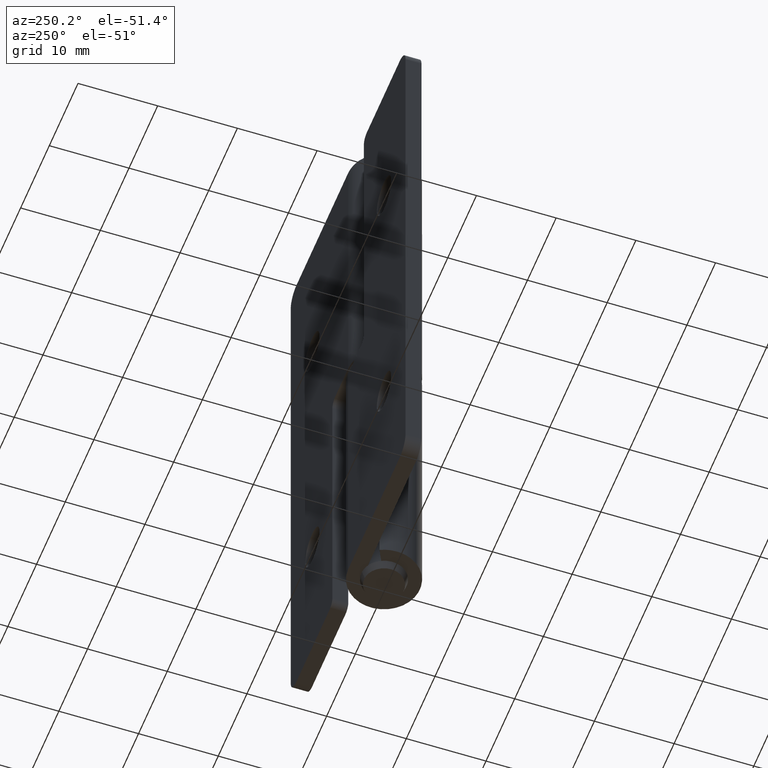
[diagram: clean part render]
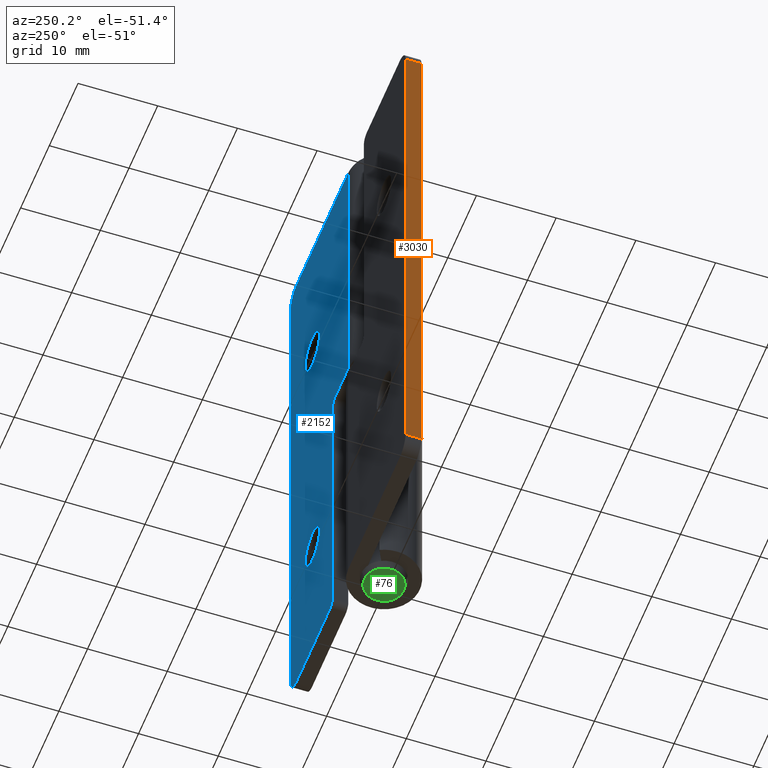
[diagram: same view with three faces highlighted in distinct colors, each labeled with its STEP entity id]
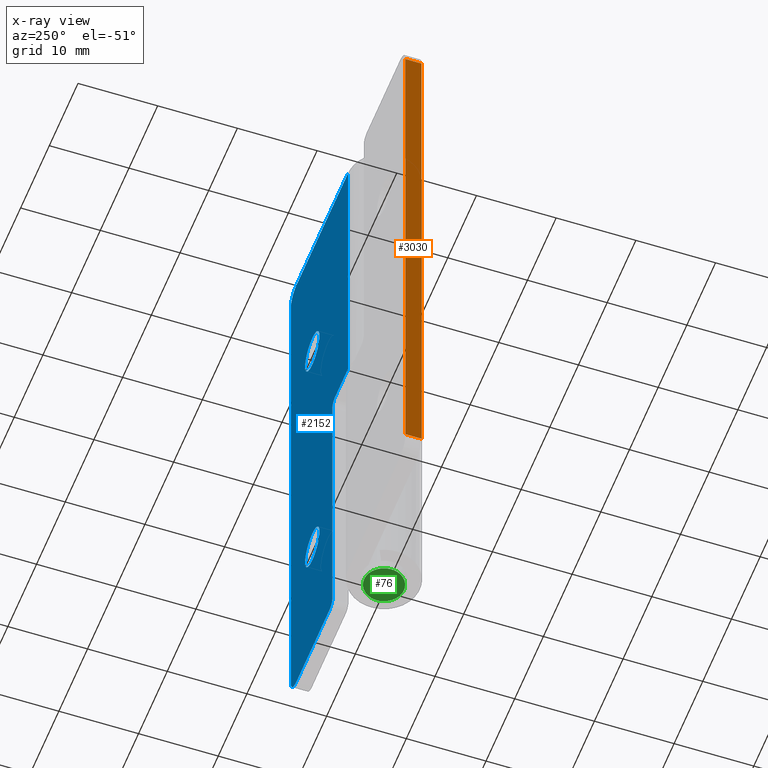
[diagram: x-ray of the same camera — body ghosted, the three highlighted faces saturated]
A machine part, auxiliary view with three faces highlighted in distinct colors.
The next image is the same camera in x-ray (body ghosted, the three faces saturated) — at least one of them is partly hidden behind the body in this view.
Their STEP definitions:

[orange] entity #3030 — the highlighted face is a freeform B-spline surface patch.
#2591=CARTESIAN_POINT('',(-19.999999999987448,4.499999999993520,2.0));
#2592=VERTEX_POINT('',#2591);
#2606=CARTESIAN_POINT('',(-19.999999999987448,4.499999999993520,73.0));
#2607=VERTEX_POINT('',#2606);
#2608=CARTESIAN_POINT('',(-19.999999999987448,4.499999999993520,73.0));
#2609=CARTESIAN_POINT('',(-19.999999999987448,4.499999999993520,2.0));
#2610=QUASI_UNIFORM_CURVE('',1,(#2608,#2609),.UNSPECIFIED.,.F.,.U.);
#2611=EDGE_CURVE('',#2607,#2592,#2610,.T.);
#2746=CARTESIAN_POINT('',(-19.999999999981050,2.499999999935400,73.0));
#2747=VERTEX_POINT('',#2746);
#2748=CARTESIAN_POINT('',(-19.999999999981050,2.499999999935400,73.0));
#2749=CARTESIAN_POINT('',(-19.999999999987448,4.499999999993520,73.0));
#2750=QUASI_UNIFORM_CURVE('',1,(#2748,#2749),.UNSPECIFIED.,.F.,.U.);
#2751=EDGE_CURVE('',#2747,#2607,#2750,.T.);
#2798=CARTESIAN_POINT('',(-19.999999999981050,2.499999999935400,2.0));
#2799=VERTEX_POINT('',#2798);
#2813=CARTESIAN_POINT('',(-19.999999999987448,4.499999999993520,2.0));
#2814=CARTESIAN_POINT('',(-19.999999999981050,2.499999999935400,2.0));
#2815=QUASI_UNIFORM_CURVE('',1,(#2813,#2814),.UNSPECIFIED.,.F.,.U.);
#2816=EDGE_CURVE('',#2592,#2799,#2815,.T.);
#3015=CARTESIAN_POINT('',(-20.000000000024400,2.400100003808885,-1.546449862388226));
#3016=CARTESIAN_POINT('',(-20.000000000031470,4.599900049764215,-1.546449862388226));
#3017=CARTESIAN_POINT('',(-20.000000000024400,2.400100003808885,76.546451766756618));
#3018=CARTESIAN_POINT('',(-20.000000000031470,4.599900049764215,76.546451766756618));
#3019=B_SPLINE_SURFACE_WITH_KNOTS('',1,1,((#3015,#3017),(#3016,#3018)),.UNSPECIFIED.,.F.,.F.,.U.,(2,2),(2,2),(0.0,2.199800045955330),(0.0,78.092901629144848),.UNSPECIFIED.);
#3020=ORIENTED_EDGE('',*,*,#2611,.T.);
#3021=ORIENTED_EDGE('',*,*,#2816,.T.);
#3022=CARTESIAN_POINT('',(-19.999999999981050,2.499999999935400,73.0));
#3023=CARTESIAN_POINT('',(-19.999999999981050,2.499999999935400,2.0));
#3024=QUASI_UNIFORM_CURVE('',1,(#3022,#3023),.UNSPECIFIED.,.F.,.U.);
#3025=EDGE_CURVE('',#2747,#2799,#3024,.T.);
#3026=ORIENTED_EDGE('',*,*,#3025,.F.);
#3027=ORIENTED_EDGE('',*,*,#2751,.T.);
#3028=EDGE_LOOP('',(#3020,#3021,#3026,#3027));
#3029=FACE_OUTER_BOUND('',#3028,.T.);
#3030=ADVANCED_FACE('',(#3029),#3019,.F.);

[blue] entity #2152 — the highlighted face is a freeform B-spline surface patch.
#1176=CARTESIAN_POINT('',(14.123617566286160,4.500000000000000,54.098982904223057));
#1177=VERTEX_POINT('',#1176);
#1183=CARTESIAN_POINT('',(10.000000000000140,4.500000000000000,56.0));
#1184=VERTEX_POINT('',#1183);
#1185=CARTESIAN_POINT('',(10.000000000000140,4.500000000000000,56.0));
#1186=CARTESIAN_POINT('',(9.999999999999803,4.500000000000000,53.500000000000398));
#1187=CARTESIAN_POINT('',(12.499999999999069,4.500000000000000,53.500000000001243));
#1188=CARTESIAN_POINT('',(13.422296784442571,4.500000000000001,53.500000000001563));
#1189=CARTESIAN_POINT('',(14.123617566286160,4.500000000000000,54.098982904223071));
#1197=(BOUNDED_CURVE()B_SPLINE_CURVE(2,(#1185,#1186,#1187,#1188,#1189),.UNSPECIFIED.,.F.,.U.)B_SPLINE_CURVE_WITH_KNOTS((3,2,3),(0.500000000000000,0.750000000000000,0.863142958276361),.UNSPECIFIED.)CURVE()GEOMETRIC_REPRESENTATION_ITEM()RATIONAL_B_SPLINE_CURVE((1.0,0.707106781186548,1.0,0.867444779057442,0.854871076774225))REPRESENTATION_ITEM(''));
#1198=EDGE_CURVE('',#1184,#1177,#1197,.T.);
#1200=CARTESIAN_POINT('',(10.876382433714120,4.500000000000000,57.901017095776943));
#1201=VERTEX_POINT('',#1200);
#1202=CARTESIAN_POINT('',(10.876382433714120,4.500000000000000,57.901017095776936));
#1203=CARTESIAN_POINT('',(10.000000000000874,4.500000000000000,57.152517822772261));
#1204=CARTESIAN_POINT('',(10.000000000000140,4.500000000000000,56.0));
#1212=(BOUNDED_CURVE()B_SPLINE_CURVE(2,(#1202,#1203,#1204),.UNSPECIFIED.,.F.,.U.)B_SPLINE_CURVE_WITH_KNOTS((3,3),(0.363142958276361,0.500000000000000),.UNSPECIFIED.)CURVE()GEOMETRIC_REPRESENTATION_ITEM()RATIONAL_B_SPLINE_CURVE((0.854871076774225,0.839662002129106,1.0))REPRESENTATION_ITEM(''));
#1213=EDGE_CURVE('',#1201,#1184,#1212,.T.);
#1294=CARTESIAN_POINT('',(15.000000000000140,4.500000000000000,56.0));
#1295=VERTEX_POINT('',#1294);
#1296=CARTESIAN_POINT('',(15.000000000000140,4.500000000000000,56.0));
#1297=CARTESIAN_POINT('',(15.000000000000476,4.500000000000000,58.499999999999602));
#1298=CARTESIAN_POINT('',(12.500000000001210,4.500000000000000,58.499999999998742));
#1299=CARTESIAN_POINT('',(11.577703215557706,4.499999999999999,58.499999999998430));
#1300=CARTESIAN_POINT('',(10.876382433714120,4.500000000000000,57.901017095776936));
#1308=(BOUNDED_CURVE()B_SPLINE_CURVE(2,(#1296,#1297,#1298,#1299,#1300),.UNSPECIFIED.,.F.,.U.)B_SPLINE_CURVE_WITH_KNOTS((3,2,3),(0.0,0.250000000000000,0.363142958276361),.UNSPECIFIED.)CURVE()GEOMETRIC_REPRESENTATION_ITEM()RATIONAL_B_SPLINE_CURVE((1.0,0.707106781186548,1.0,0.867444779057442,0.854871076774225))REPRESENTATION_ITEM(''));
#1309=EDGE_CURVE('',#1295,#1201,#1308,.T.);
#1311=CARTESIAN_POINT('',(14.123617566286160,4.500000000000000,54.098982904223071));
#1312=CARTESIAN_POINT('',(14.999999999999410,4.500000000000000,54.847482177227747));
#1313=CARTESIAN_POINT('',(15.000000000000140,4.500000000000000,56.0));
#1321=(BOUNDED_CURVE()B_SPLINE_CURVE(2,(#1311,#1312,#1313),.UNSPECIFIED.,.F.,.U.)B_SPLINE_CURVE_WITH_KNOTS((3,3),(0.863142958276361,1.0),.UNSPECIFIED.)CURVE()GEOMETRIC_REPRESENTATION_ITEM()RATIONAL_B_SPLINE_CURVE((0.854871076774225,0.839662002129106,1.0))REPRESENTATION_ITEM(''));
#1322=EDGE_CURVE('',#1177,#1295,#1321,.T.);
#1363=CARTESIAN_POINT('',(14.123617566286160,4.500000000000000,17.098982904223060));
#1364=VERTEX_POINT('',#1363);
#1370=CARTESIAN_POINT('',(10.000000000000140,4.500000000000000,19.0));
#1371=VERTEX_POINT('',#1370);
#1372=CARTESIAN_POINT('',(10.000000000000140,4.500000000000000,19.0));
#1373=CARTESIAN_POINT('',(9.999999999999803,4.500000000000000,16.500000000000387));
#1374=CARTESIAN_POINT('',(12.499999999999069,4.500000000000000,16.500000000001261));
#1375=CARTESIAN_POINT('',(13.422296784442572,4.499999999999999,16.500000000001567));
#1376=CARTESIAN_POINT('',(14.123617566286160,4.500000000000000,17.098982904223067));
#1384=(BOUNDED_CURVE()B_SPLINE_CURVE(2,(#1372,#1373,#1374,#1375,#1376),.UNSPECIFIED.,.F.,.U.)B_SPLINE_CURVE_WITH_KNOTS((3,2,3),(0.500000000000000,0.750000000000000,0.863142958276361),.UNSPECIFIED.)CURVE()GEOMETRIC_REPRESENTATION_ITEM()RATIONAL_B_SPLINE_CURVE((1.0,0.707106781186548,1.0,0.867444779057442,0.854871076774225))REPRESENTATION_ITEM(''));
#1385=EDGE_CURVE('',#1371,#1364,#1384,.T.);
#1387=CARTESIAN_POINT('',(10.876382433714120,4.500000000000000,20.901017095776929));
#1388=VERTEX_POINT('',#1387);
#1389=CARTESIAN_POINT('',(10.876382433714118,4.500000000000000,20.901017095776933));
#1390=CARTESIAN_POINT('',(10.000000000000876,4.500000000000001,20.152517822772261));
#1391=CARTESIAN_POINT('',(10.000000000000140,4.500000000000000,19.0));
#1399=(BOUNDED_CURVE()B_SPLINE_CURVE(2,(#1389,#1390,#1391),.UNSPECIFIED.,.F.,.U.)B_SPLINE_CURVE_WITH_KNOTS((3,3),(0.363142958276362,0.500000000000000),.UNSPECIFIED.)CURVE()GEOMETRIC_REPRESENTATION_ITEM()RATIONAL_B_SPLINE_CURVE((0.854871076774225,0.839662002129106,1.0))REPRESENTATION_ITEM(''));
#1400=EDGE_CURVE('',#1388,#1371,#1399,.T.);
#1478=CARTESIAN_POINT('',(15.000000000000140,4.500000000000000,19.0));
#1479=VERTEX_POINT('',#1478);
#1480=CARTESIAN_POINT('',(15.000000000000140,4.500000000000000,19.0));
#1481=CARTESIAN_POINT('',(15.000000000000476,4.500000000000000,21.499999999999599));
#1482=CARTESIAN_POINT('',(12.500000000001210,4.500000000000000,21.499999999998749));
#1483=CARTESIAN_POINT('',(11.577703215557714,4.500000000000000,21.499999999998437));
#1484=CARTESIAN_POINT('',(10.876382433714118,4.500000000000000,20.901017095776933));
#1492=(BOUNDED_CURVE()B_SPLINE_CURVE(2,(#1480,#1481,#1482,#1483,#1484),.UNSPECIFIED.,.F.,.U.)B_SPLINE_CURVE_WITH_KNOTS((3,2,3),(0.0,0.250000000000000,0.363142958276362),.UNSPECIFIED.)CURVE()GEOMETRIC_REPRESENTATION_ITEM()RATIONAL_B_SPLINE_CURVE((1.0,0.707106781186548,1.0,0.867444779057441,0.854871076774225))REPRESENTATION_ITEM(''));
#1493=EDGE_CURVE('',#1479,#1388,#1492,.T.);
#1495=CARTESIAN_POINT('',(14.123617566286160,4.500000000000000,17.098982904223067));
#1496=CARTESIAN_POINT('',(14.999999999999410,4.500000000000000,17.847482177227736));
#1497=CARTESIAN_POINT('',(15.000000000000140,4.500000000000000,19.0));
#1505=(BOUNDED_CURVE()B_SPLINE_CURVE(2,(#1495,#1496,#1497),.UNSPECIFIED.,.F.,.U.)B_SPLINE_CURVE_WITH_KNOTS((3,3),(0.863142958276361,1.0),.UNSPECIFIED.)CURVE()GEOMETRIC_REPRESENTATION_ITEM()RATIONAL_B_SPLINE_CURVE((0.854871076774225,0.839662002129106,1.0))REPRESENTATION_ITEM(''));
#1506=EDGE_CURVE('',#1364,#1479,#1505,.T.);
#1771=CARTESIAN_POINT('',(4.500000000000000,4.499999999999949,38.0));
#1772=VERTEX_POINT('',#1771);
#1778=CARTESIAN_POINT('',(5.500000000000000,4.499999999999949,37.0));
#1779=VERTEX_POINT('',#1778);
#1780=CARTESIAN_POINT('',(5.500000000000000,4.499999999999949,37.0));
#1781=CARTESIAN_POINT('',(5.500000000000001,4.499999999999949,38.0));
#1782=CARTESIAN_POINT('',(4.500000000000000,4.499999999999949,38.0));
#1790=(BOUNDED_CURVE()B_SPLINE_CURVE(2,(#1780,#1781,#1782),.UNSPECIFIED.,.F.,.U.)CURVE()GEOMETRIC_REPRESENTATION_ITEM()QUASI_UNIFORM_CURVE()RATIONAL_B_SPLINE_CURVE((1.0,0.707106781186548,1.0))REPRESENTATION_ITEM(''));
#1791=EDGE_CURVE('',#1779,#1772,#1790,.T.);
#1816=CARTESIAN_POINT('',(5.500000000000000,4.499999999999949,1.0));
#1817=VERTEX_POINT('',#1816);
#1823=CARTESIAN_POINT('',(6.500000000000000,4.500000000000000,0.0));
#1824=VERTEX_POINT('',#1823);
#1825=CARTESIAN_POINT('',(6.500000000000000,4.500000000000000,0.0));
#1826=CARTESIAN_POINT('',(5.500000000000001,4.500000000000000,0.0));
#1827=CARTESIAN_POINT('',(5.500000000000000,4.500000000000000,1.0));
#1835=(BOUNDED_CURVE()B_SPLINE_CURVE(2,(#1825,#1826,#1827),.UNSPECIFIED.,.F.,.U.)CURVE()GEOMETRIC_REPRESENTATION_ITEM()QUASI_UNIFORM_CURVE()RATIONAL_B_SPLINE_CURVE((1.0,0.707106781186548,1.0))REPRESENTATION_ITEM(''));
#1836=EDGE_CURVE('',#1824,#1817,#1835,.T.);
#1860=CARTESIAN_POINT('',(17.999999999983000,4.500000000000000,75.0));
#1861=VERTEX_POINT('',#1860);
#1862=CARTESIAN_POINT('',(19.999999999983000,4.500000000000000,73.0));
#1863=VERTEX_POINT('',#1862);
#1864=CARTESIAN_POINT('',(17.999999999983000,4.500000000000000,75.0));
#1865=CARTESIAN_POINT('',(19.999999999983000,4.500000000000000,75.000000000000014));
#1866=CARTESIAN_POINT('',(19.999999999983000,4.500000000000000,73.0));
#1874=(BOUNDED_CURVE()B_SPLINE_CURVE(2,(#1864,#1865,#1866),.UNSPECIFIED.,.F.,.U.)CURVE()GEOMETRIC_REPRESENTATION_ITEM()QUASI_UNIFORM_CURVE()RATIONAL_B_SPLINE_CURVE((1.0,0.707106781186548,1.0))REPRESENTATION_ITEM(''));
#1875=EDGE_CURVE('',#1861,#1863,#1874,.T.);
#1905=CARTESIAN_POINT('',(19.999999999983000,4.500000000000000,2.0));
#1906=VERTEX_POINT('',#1905);
#1907=CARTESIAN_POINT('',(17.999999999983000,4.500000000000000,0.0));
#1908=VERTEX_POINT('',#1907);
#1909=CARTESIAN_POINT('',(19.999999999983000,4.500000000000000,2.0));
#1910=CARTESIAN_POINT('',(19.999999999983000,4.500000000000000,0.0));
#1911=CARTESIAN_POINT('',(17.999999999983000,4.500000000000000,0.0));
#1919=(BOUNDED_CURVE()B_SPLINE_CURVE(2,(#1909,#1910,#1911),.UNSPECIFIED.,.F.,.U.)CURVE()GEOMETRIC_REPRESENTATION_ITEM()QUASI_UNIFORM_CURVE()RATIONAL_B_SPLINE_CURVE((1.0,0.707106781186548,1.0))REPRESENTATION_ITEM(''));
#1920=EDGE_CURVE('',#1906,#1908,#1919,.T.);
#1941=CARTESIAN_POINT('',(-1.682769E-011,4.499999999999949,38.0));
#1942=VERTEX_POINT('',#1941);
#1943=CARTESIAN_POINT('',(4.500000000000000,4.499999999999949,38.0));
#1944=CARTESIAN_POINT('',(-1.682769E-011,4.499999999999949,38.0));
#1945=QUASI_UNIFORM_CURVE('',1,(#1943,#1944),.UNSPECIFIED.,.F.,.U.);
#1946=EDGE_CURVE('',#1772,#1942,#1945,.T.);
#1993=CARTESIAN_POINT('',(5.500000000000000,4.499999999999949,1.0));
#1994=CARTESIAN_POINT('',(5.500000000000000,4.499999999999949,37.0));
#1995=QUASI_UNIFORM_CURVE('',1,(#1993,#1994),.UNSPECIFIED.,.F.,.U.);
#1996=EDGE_CURVE('',#1817,#1779,#1995,.T.);
#2011=CARTESIAN_POINT('',(-1.682825E-011,4.500000000000060,75.0));
#2012=VERTEX_POINT('',#2011);
#2013=CARTESIAN_POINT('',(-1.682825E-011,4.500000000000060,75.0));
#2014=CARTESIAN_POINT('',(17.999999999983000,4.500000000000000,75.0));
#2015=QUASI_UNIFORM_CURVE('',1,(#2013,#2014),.UNSPECIFIED.,.F.,.U.);
#2016=EDGE_CURVE('',#2012,#1861,#2015,.T.);
#2065=CARTESIAN_POINT('',(19.999999999983000,4.500000000000000,73.0));
#2066=CARTESIAN_POINT('',(19.999999999983000,4.500000000000000,2.0));
#2067=QUASI_UNIFORM_CURVE('',1,(#2065,#2066),.UNSPECIFIED.,.F.,.U.);
#2068=EDGE_CURVE('',#1863,#1906,#2067,.T.);
#2081=CARTESIAN_POINT('',(6.500000000000000,4.500000000000000,0.0));
#2082=CARTESIAN_POINT('',(17.999999999983000,4.500000000000000,0.0));
#2083=QUASI_UNIFORM_CURVE('',1,(#2081,#2082),.UNSPECIFIED.,.F.,.U.);
#2084=EDGE_CURVE('',#1824,#1908,#2083,.T.);
#2115=CARTESIAN_POINT('',(-1.682825E-011,4.500000000000060,75.0));
#2116=CARTESIAN_POINT('',(-1.682769E-011,4.499999999999949,38.0));
#2117=QUASI_UNIFORM_CURVE('',1,(#2115,#2116),.UNSPECIFIED.,.F.,.U.);
#2118=EDGE_CURVE('',#2012,#1942,#2117,.T.);
#2123=CARTESIAN_POINT('',(-0.998999961252939,4.500000000000000,-3.746249854635448));
#2124=CARTESIAN_POINT('',(-0.998999961252939,4.500000000000000,78.746251866292212));
#2125=CARTESIAN_POINT('',(20.999000497660919,4.500000000000000,-3.746249854635448));
#2126=CARTESIAN_POINT('',(20.999000497660919,4.500000000000000,78.746251866292212));
#2127=B_SPLINE_SURFACE_WITH_KNOTS('',1,1,((#2123,#2125),(#2124,#2126)),.UNSPECIFIED.,.F.,.F.,.U.,(2,2),(2,2),(0.0,82.492501720927663),(0.0,21.998000458913861),.UNSPECIFIED.);
#2128=ORIENTED_EDGE('',*,*,#2084,.F.);
#2129=ORIENTED_EDGE('',*,*,#1836,.T.);
#2130=ORIENTED_EDGE('',*,*,#1996,.T.);
#2131=ORIENTED_EDGE('',*,*,#1791,.T.);
#2132=ORIENTED_EDGE('',*,*,#1946,.T.);
#2133=ORIENTED_EDGE('',*,*,#2118,.F.);
#2134=ORIENTED_EDGE('',*,*,#2016,.T.);
#2135=ORIENTED_EDGE('',*,*,#1875,.T.);
#2136=ORIENTED_EDGE('',*,*,#2068,.T.);
#2137=ORIENTED_EDGE('',*,*,#1920,.T.);
#2138=EDGE_LOOP('',(#2128,#2129,#2130,#2131,#2132,#2133,#2134,#2135,#2136,#2137));
#2139=FACE_OUTER_BOUND('',#2138,.T.);
#2140=ORIENTED_EDGE('',*,*,#1493,.T.);
#2141=ORIENTED_EDGE('',*,*,#1400,.T.);
#2142=ORIENTED_EDGE('',*,*,#1385,.T.);
#2143=ORIENTED_EDGE('',*,*,#1506,.T.);
#2144=EDGE_LOOP('',(#2140,#2141,#2142,#2143));
#2145=FACE_BOUND('',#2144,.T.);
#2146=ORIENTED_EDGE('',*,*,#1309,.T.);
#2147=ORIENTED_EDGE('',*,*,#1213,.T.);
#2148=ORIENTED_EDGE('',*,*,#1198,.T.);
#2149=ORIENTED_EDGE('',*,*,#1322,.T.);
#2150=EDGE_LOOP('',(#2146,#2147,#2148,#2149));
#2151=FACE_BOUND('',#2150,.T.);
#2152=ADVANCED_FACE('',(#2139,#2145,#2151),#2127,.T.);

[green] entity #76 — the highlighted face is a freeform B-spline surface patch.
#5=CARTESIAN_POINT('',(-2.749749990309030,-2.748986881816716,-1.0));
#6=CARTESIAN_POINT('',(2.749750124419481,-2.748986881816716,-1.0));
#7=CARTESIAN_POINT('',(-2.749749990309030,2.748987015927167,-1.0));
#8=CARTESIAN_POINT('',(2.749750124419481,2.748987015927167,-1.0));
#9=B_SPLINE_SURFACE_WITH_KNOTS('',1,1,((#5,#7),(#6,#8)),.UNSPECIFIED.,.F.,.F.,.U.,(2,2),(2,2),(0.0,5.499500114728511),(0.0,5.497973897743883),.UNSPECIFIED.);
#10=CARTESIAN_POINT('',(-2.500000000000000,0.0,-1.0));
#11=VERTEX_POINT('',#10);
#12=CARTESIAN_POINT('',(-0.196147739567857,2.492293334329274,-0.999999999954458));
#13=VERTEX_POINT('',#12);
#14=CARTESIAN_POINT('',(-2.500000000000000,0.0,-1.0));
#15=CARTESIAN_POINT('',(-2.500000000000625,2.310976228923731,-0.999999999977229));
#16=CARTESIAN_POINT('',(-0.196147739567857,2.492293334329274,-0.999999999954458));
#24=(BOUNDED_CURVE()B_SPLINE_CURVE(2,(#14,#15,#16),.UNSPECIFIED.,.F.,.U.)B_SPLINE_CURVE_WITH_KNOTS((3,3),(0.0,0.236331300615778),.UNSPECIFIED.)CURVE()GEOMETRIC_REPRESENTATION_ITEM()RATIONAL_B_SPLINE_CURVE((1.0,0.723120658625100,0.969723356136361))REPRESENTATION_ITEM(''));
#25=EDGE_CURVE('',#11,#13,#24,.T.);
#26=ORIENTED_EDGE('',*,*,#25,.T.);
#27=CARTESIAN_POINT('',(2.500000000000000,0.0,-1.0));
#28=VERTEX_POINT('',#27);
#29=CARTESIAN_POINT('',(-0.196147739567857,2.492293334329274,-0.999999999954458));
#30=CARTESIAN_POINT('',(-0.098225267644472,2.500000000015604,-0.999999999955285));
#31=CARTESIAN_POINT('',(-1.203492E-012,2.500000000015292,-0.999999999956180));
#32=CARTESIAN_POINT('',(2.499999999999422,2.500000000007345,-0.999999999978951));
#33=CARTESIAN_POINT('',(2.500000000000000,0.0,-1.0));
#41=(BOUNDED_CURVE()B_SPLINE_CURVE(2,(#29,#30,#31,#32,#33),.UNSPECIFIED.,.F.,.U.)B_SPLINE_CURVE_WITH_KNOTS((3,2,3),(0.236331300615778,0.250000000000000,0.500000000000000),.UNSPECIFIED.)CURVE()GEOMETRIC_REPRESENTATION_ITEM()RATIONAL_B_SPLINE_CURVE((0.969723356136361,0.983986122561447,1.0,0.707106781186548,1.0))REPRESENTATION_ITEM(''));
#42=EDGE_CURVE('',#13,#28,#41,.T.);
#43=ORIENTED_EDGE('',*,*,#42,.T.);
#44=CARTESIAN_POINT('',(0.196147739567857,-2.492293334329274,-0.999999999954458));
#45=VERTEX_POINT('',#44);
#46=CARTESIAN_POINT('',(2.500000000000000,0.0,-1.0));
#47=CARTESIAN_POINT('',(2.500000000000626,-2.310976228923731,-0.999999999977229));
#48=CARTESIAN_POINT('',(0.196147739567857,-2.492293334329274,-0.999999999954458));
#56=(BOUNDED_CURVE()B_SPLINE_CURVE(2,(#46,#47,#48),.UNSPECIFIED.,.F.,.U.)B_SPLINE_CURVE_WITH_KNOTS((3,3),(0.500000000000000,0.736331300615778),.UNSPECIFIED.)CURVE()GEOMETRIC_REPRESENTATION_ITEM()RATIONAL_B_SPLINE_CURVE((1.0,0.723120658625100,0.969723356136361))REPRESENTATION_ITEM(''));
#57=EDGE_CURVE('',#28,#45,#56,.T.);
#58=ORIENTED_EDGE('',*,*,#57,.T.);
#59=CARTESIAN_POINT('',(0.196147739567857,-2.492293334329274,-0.999999999954458));
#60=CARTESIAN_POINT('',(0.098225267644473,-2.500000000015604,-0.999999999955285));
#61=CARTESIAN_POINT('',(1.203973E-012,-2.500000000015291,-0.999999999956180));
#62=CARTESIAN_POINT('',(-2.499999999999422,-2.500000000007345,-0.999999999978951));
#63=CARTESIAN_POINT('',(-2.500000000000000,0.0,-1.0));
#71=(BOUNDED_CURVE()B_SPLINE_CURVE(2,(#59,#60,#61,#62,#63),.UNSPECIFIED.,.F.,.U.)B_SPLINE_CURVE_WITH_KNOTS((3,2,3),(0.736331300615778,0.750000000000000,1.0),.UNSPECIFIED.)CURVE()GEOMETRIC_REPRESENTATION_ITEM()RATIONAL_B_SPLINE_CURVE((0.969723356136361,0.983986122561447,1.0,0.707106781186548,1.0))REPRESENTATION_ITEM(''));
#72=EDGE_CURVE('',#45,#11,#71,.T.);
#73=ORIENTED_EDGE('',*,*,#72,.T.);
#74=EDGE_LOOP('',(#26,#43,#58,#73));
#75=FACE_OUTER_BOUND('',#74,.T.);
#76=ADVANCED_FACE('',(#75),#9,.F.);